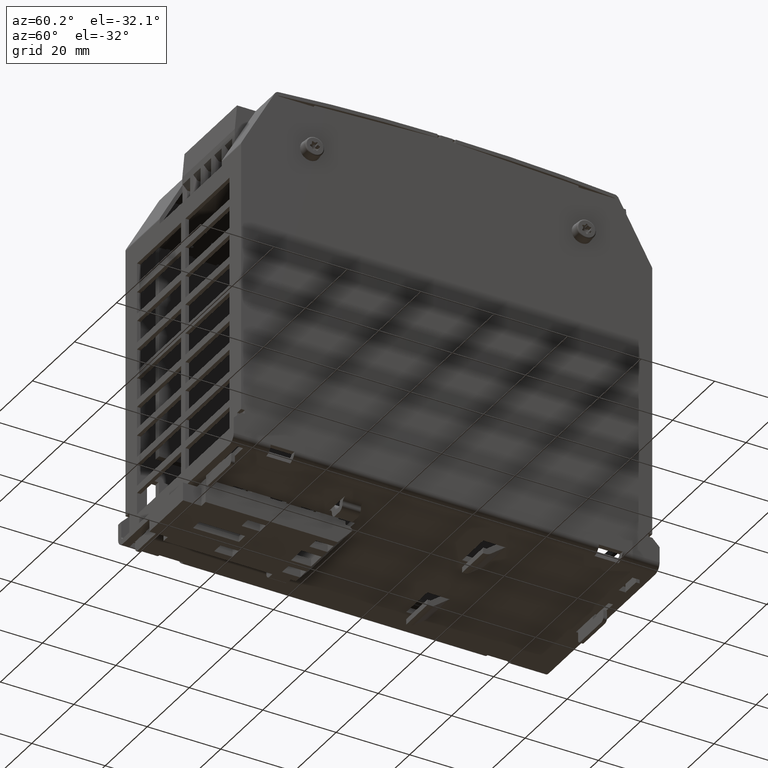
[diagram: clean part render]
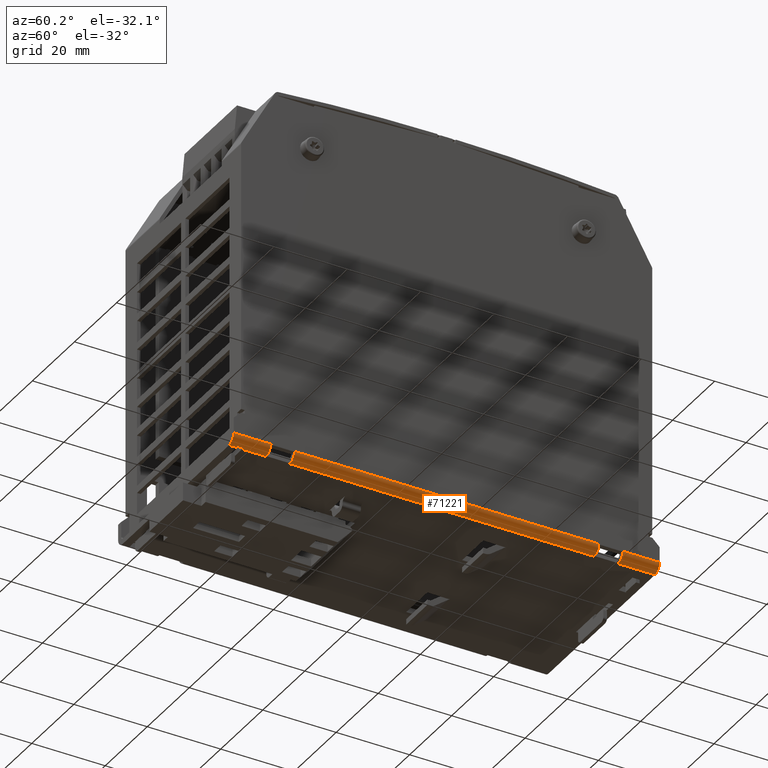
[diagram: same view with one face highlighted and labeled with its STEP entity id]
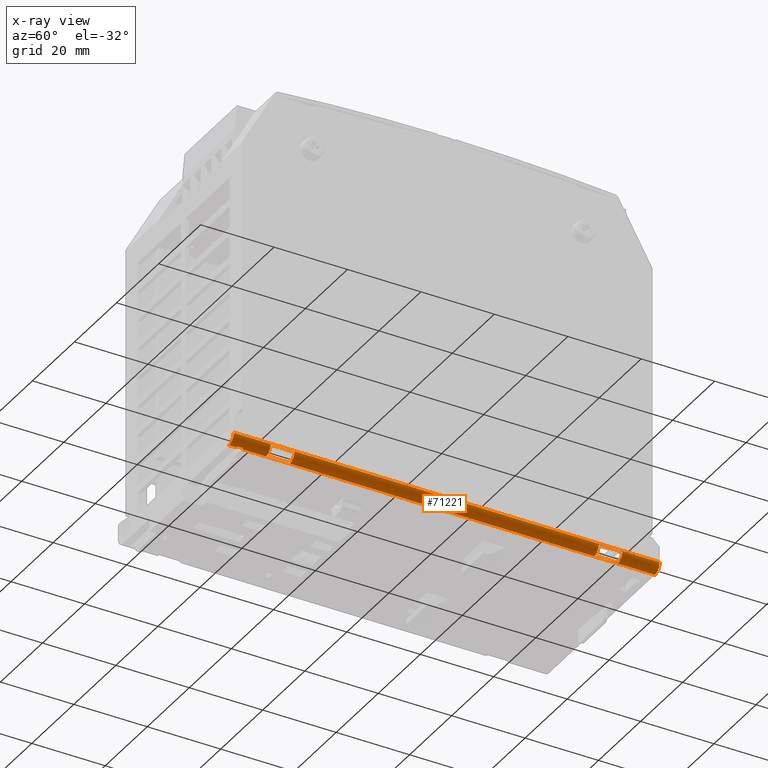
[diagram: x-ray of the same camera — body ghosted, the highlighted face saturated]
A machine part, auxiliary view. The second image highlights one B-rep face of the part: STEP entity #71221.
The next image is the same camera in x-ray: the body ghosted, the highlighted face saturated — about 0% of this face is hidden behind the body in this view.
In plain terms, the highlighted cylindrical surface (edge-blend (fillet) strip) has radius 2.25 mm, axis along (0, -1, 0).
Its self-contained STEP definition (entity closure, byte-faithful):
#66065=CARTESIAN_POINT('',(0.994094488188975,-2.202755905511812,2.108987E-015));
#66066=VERTEX_POINT('',#66065);
#66089=CARTESIAN_POINT('',(0.994094488188976,-2.283464566929135,2.098059E-015));
#66090=VERTEX_POINT('',#66089);
#66091=CARTESIAN_POINT('',(0.994094488188975,-2.202755905511812,2.108987E-015));
#66092=DIRECTION('',(0.0,-1.0,0.0));
#66093=VECTOR('',#66092,0.080708661417324);
#66094=LINE('',#66091,#66093);
#66095=EDGE_CURVE('',#66066,#66090,#66094,.T.);
#66154=CARTESIAN_POINT('',(0.994094488188975,2.283464566929135,2.098059E-015));
#66155=VERTEX_POINT('',#66154);
#66162=CARTESIAN_POINT('',(0.994094488188975,-2.143700787401575,2.108987E-015));
#66163=VERTEX_POINT('',#66162);
#66164=CARTESIAN_POINT('',(0.994094488188975,2.283464566929135,2.098059E-015));
#66165=DIRECTION('',(0.0,-1.0,0.0));
#66166=VECTOR('',#66165,4.42716535433071);
#66167=LINE('',#66164,#66166);
#66168=EDGE_CURVE('',#66155,#66163,#66167,.T.);
#66895=CARTESIAN_POINT('',(1.08267716535433,-2.283464566929135,0.088582677165356));
#66896=VERTEX_POINT('',#66895);
#66903=CARTESIAN_POINT('',(1.08267716535433,2.283464566929135,0.088582677165356));
#66904=VERTEX_POINT('',#66903);
#66905=CARTESIAN_POINT('',(1.08267716535433,-2.283464566929135,0.088582677165356));
#66906=DIRECTION('',(0.0,1.0,0.0));
#66907=VECTOR('',#66906,4.56692913385827);
#66908=LINE('',#66905,#66907);
#66909=EDGE_CURVE('',#66896,#66904,#66908,.T.);
#67565=CARTESIAN_POINT('',(1.000836041635434,-1.887795275590552,0.000256904307657));
#67566=VERTEX_POINT('',#67565);
#67567=CARTESIAN_POINT('',(1.082420261046675,-1.887795275590552,0.081841123718894));
#67568=VERTEX_POINT('',#67567);
#67569=CARTESIAN_POINT('',(0.994094488188976,-1.887795275590552,0.088582677165356));
#67570=DIRECTION('',(0.0,-1.0,0.0));
#67571=DIRECTION('',(0.076104647795579,0.0,-0.997099835815808));
#67572=AXIS2_PLACEMENT_3D('',#67569,#67570,#67571);
#67573=CIRCLE('',#67572,0.088582677165354);
#67574=EDGE_CURVE('',#67566,#67568,#67573,.T.);
#67607=CARTESIAN_POINT('',(1.082420261046675,-1.631889763779528,0.081841123718894));
#67608=VERTEX_POINT('',#67607);
#67609=CARTESIAN_POINT('',(1.082420261046675,-1.887795275590552,0.081841123718894));
#67610=DIRECTION('',(0.0,1.0,0.0));
#67611=VECTOR('',#67610,0.255905511811023);
#67612=LINE('',#67609,#67611);
#67613=EDGE_CURVE('',#67568,#67608,#67612,.T.);
#67638=CARTESIAN_POINT('',(1.000836041635434,-1.631889763779528,0.000256904307657));
#67639=VERTEX_POINT('',#67638);
#67640=CARTESIAN_POINT('',(0.994094488188976,-1.631889763779528,0.088582677165356));
#67641=DIRECTION('',(0.0,1.0,0.0));
#67642=DIRECTION('',(0.997099835815805,0.0,-0.076104647795617));
#67643=AXIS2_PLACEMENT_3D('',#67640,#67641,#67642);
#67644=CIRCLE('',#67643,0.088582677165354);
#67645=EDGE_CURVE('',#67608,#67639,#67644,.T.);
#67671=CARTESIAN_POINT('',(1.000836041635434,-1.631889763779528,0.000256904307657));
#67672=DIRECTION('',(0.0,-1.0,0.0));
#67673=VECTOR('',#67672,0.255905511811023);
#67674=LINE('',#67671,#67673);
#67675=EDGE_CURVE('',#67639,#67566,#67674,.T.);
#67693=CARTESIAN_POINT('',(1.000836041635437,1.631889763779528,0.000256904307657));
#67694=VERTEX_POINT('',#67693);
#67695=CARTESIAN_POINT('',(1.082420261046675,1.631889763779528,0.081841123718897));
#67696=VERTEX_POINT('',#67695);
#67697=CARTESIAN_POINT('',(0.994094488188975,1.631889763779528,0.088582677165356));
#67698=DIRECTION('',(0.0,-1.0,0.0));
#67699=DIRECTION('',(0.076104647795609,0.0,-0.997099835815805));
#67700=AXIS2_PLACEMENT_3D('',#67697,#67698,#67699);
#67701=CIRCLE('',#67700,0.088582677165354);
#67702=EDGE_CURVE('',#67694,#67696,#67701,.T.);
#67735=CARTESIAN_POINT('',(1.082420261046675,1.887795275590552,0.081841123718897));
#67736=VERTEX_POINT('',#67735);
#67737=CARTESIAN_POINT('',(1.082420261046675,1.631889763779528,0.081841123718897));
#67738=DIRECTION('',(0.0,1.0,0.0));
#67739=VECTOR('',#67738,0.255905511811024);
#67740=LINE('',#67737,#67739);
#67741=EDGE_CURVE('',#67696,#67736,#67740,.T.);
#67766=CARTESIAN_POINT('',(1.000836041635437,1.887795275590552,0.000256904307657));
#67767=VERTEX_POINT('',#67766);
#67768=CARTESIAN_POINT('',(0.994094488188975,1.887795275590552,0.088582677165356));
#67769=DIRECTION('',(0.0,1.0,0.0));
#67770=DIRECTION('',(0.997099835815807,0.0,-0.076104647795589));
#67771=AXIS2_PLACEMENT_3D('',#67768,#67769,#67770);
#67772=CIRCLE('',#67771,0.088582677165354);
#67773=EDGE_CURVE('',#67736,#67767,#67772,.T.);
#67799=CARTESIAN_POINT('',(1.000836041635437,1.887795275590552,0.000256904307657));
#67800=DIRECTION('',(0.0,-1.0,0.0));
#67801=VECTOR('',#67800,0.255905511811024);
#67802=LINE('',#67799,#67801);
#67803=EDGE_CURVE('',#67767,#67694,#67802,.T.);
#68083=CARTESIAN_POINT('',(1.011811023622046,-2.143700787401575,0.001789733523433));
#68084=VERTEX_POINT('',#68083);
#68085=CARTESIAN_POINT('',(0.994094488188976,-2.143700787401575,0.088582677165356));
#68086=DIRECTION('',(0.0,1.0,0.0));
#68087=DIRECTION('',(0.199999999999998,0.0,-0.979795897113272));
#68088=AXIS2_PLACEMENT_3D('',#68085,#68086,#68087);
#68089=CIRCLE('',#68088,0.088582677165354);
#68090=EDGE_CURVE('',#68084,#66163,#68089,.T.);
#70388=CARTESIAN_POINT('',(1.011811023622046,-2.202755905511812,0.001789733523433));
#70389=VERTEX_POINT('',#70388);
#70396=CARTESIAN_POINT('',(0.994094488188976,-2.202755905511812,0.088582677165356));
#70397=DIRECTION('',(0.0,-1.0,0.0));
#70398=DIRECTION('',(0.0,0.0,-1.0));
#70399=AXIS2_PLACEMENT_3D('',#70396,#70397,#70398);
#70400=CIRCLE('',#70399,0.088582677165354);
#70401=EDGE_CURVE('',#66066,#70389,#70400,.T.);
#70433=CARTESIAN_POINT('',(1.011811023622046,-2.202755905511812,0.001789733523433));
#70434=DIRECTION('',(0.0,1.0,0.0));
#70435=VECTOR('',#70434,0.059055118110237);
#70436=LINE('',#70433,#70435);
#70437=EDGE_CURVE('',#70389,#68084,#70436,.T.);
#70839=CARTESIAN_POINT('',(1.023622047244094,2.283464566929135,0.005066128206315));
#70840=VERTEX_POINT('',#70839);
#70853=CARTESIAN_POINT('',(0.994094488188975,2.283464566929135,0.088582677165356));
#70854=DIRECTION('',(0.0,1.0,0.0));
#70855=DIRECTION('',(1.0,0.0,0.0));
#70856=AXIS2_PLACEMENT_3D('',#70853,#70854,#70855);
#70857=CIRCLE('',#70856,0.088582677165354);
#70858=EDGE_CURVE('',#66904,#70840,#70857,.T.);
#70885=CARTESIAN_POINT('',(1.023622047244094,-2.283464566929135,0.005066128206315));
#70886=VERTEX_POINT('',#70885);
#70895=CARTESIAN_POINT('',(0.994094488188976,-2.283464566929135,0.088582677165356));
#70896=DIRECTION('',(0.0,-1.0,0.0));
#70897=DIRECTION('',(0.33333333333334,0.0,-0.942809041582061));
#70898=AXIS2_PLACEMENT_3D('',#70895,#70896,#70897);
#70899=CIRCLE('',#70898,0.088582677165354);
#70900=EDGE_CURVE('',#70886,#66896,#70899,.T.);
#71180=CARTESIAN_POINT('',(0.994094488188975,-3.653098E-032,0.088582677165356));
#71181=DIRECTION('',(0.0,-1.0,0.0));
#71182=DIRECTION('',(0.0,0.0,-1.0));
#71183=AXIS2_PLACEMENT_3D('',#71180,#71181,#71182);
#71184=CYLINDRICAL_SURFACE('',#71183,0.088582677165354);
#71185=ORIENTED_EDGE('',*,*,#68090,.T.);
#71186=ORIENTED_EDGE('',*,*,#66168,.F.);
#71187=CARTESIAN_POINT('',(0.994094488188975,2.283464566929135,0.088582677165356));
#71188=DIRECTION('',(0.0,1.0,0.0));
#71189=DIRECTION('',(0.333333333333342,0.0,-0.94280904158206));
#71190=AXIS2_PLACEMENT_3D('',#71187,#71188,#71189);
#71191=CIRCLE('',#71190,0.088582677165354);
#71192=EDGE_CURVE('',#70840,#66155,#71191,.T.);
#71193=ORIENTED_EDGE('',*,*,#71192,.F.);
#71194=ORIENTED_EDGE('',*,*,#70858,.F.);
#71195=ORIENTED_EDGE('',*,*,#66909,.F.);
#71196=ORIENTED_EDGE('',*,*,#70900,.F.);
#71197=CARTESIAN_POINT('',(0.994094488188976,-2.283464566929135,0.088582677165356));
#71198=DIRECTION('',(0.0,-1.0,0.0));
#71199=DIRECTION('',(0.0,0.0,-1.0));
#71200=AXIS2_PLACEMENT_3D('',#71197,#71198,#71199);
#71201=CIRCLE('',#71200,0.088582677165354);
#71202=EDGE_CURVE('',#66090,#70886,#71201,.T.);
#71203=ORIENTED_EDGE('',*,*,#71202,.F.);
#71204=ORIENTED_EDGE('',*,*,#66095,.F.);
#71205=ORIENTED_EDGE('',*,*,#70401,.T.);
#71206=ORIENTED_EDGE('',*,*,#70437,.T.);
#71207=EDGE_LOOP('',(#71185,#71186,#71193,#71194,#71195,#71196,#71203,#71204,#71205,#71206));
#71208=FACE_OUTER_BOUND('',#71207,.T.);
#71209=ORIENTED_EDGE('',*,*,#67574,.T.);
#71210=ORIENTED_EDGE('',*,*,#67613,.T.);
#71211=ORIENTED_EDGE('',*,*,#67645,.T.);
#71212=ORIENTED_EDGE('',*,*,#67675,.T.);
#71213=EDGE_LOOP('',(#71209,#71210,#71211,#71212));
#71214=FACE_BOUND('',#71213,.T.);
#71215=ORIENTED_EDGE('',*,*,#67702,.T.);
#71216=ORIENTED_EDGE('',*,*,#67741,.T.);
#71217=ORIENTED_EDGE('',*,*,#67773,.T.);
#71218=ORIENTED_EDGE('',*,*,#67803,.T.);
#71219=EDGE_LOOP('',(#71215,#71216,#71217,#71218));
#71220=FACE_BOUND('',#71219,.T.);
#71221=ADVANCED_FACE('',(#71208,#71214,#71220),#71184,.T.);